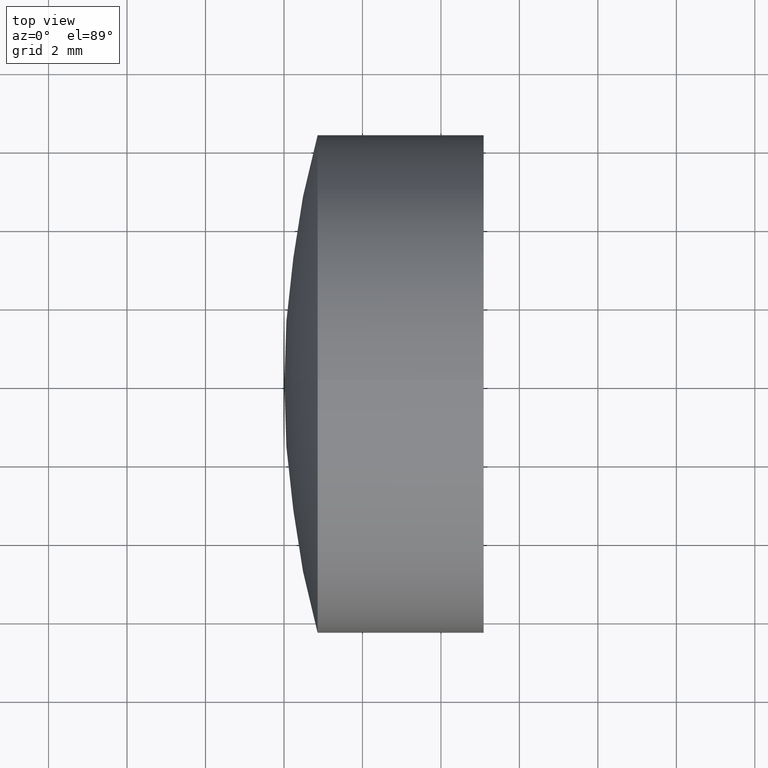
[diagram: clean part render]
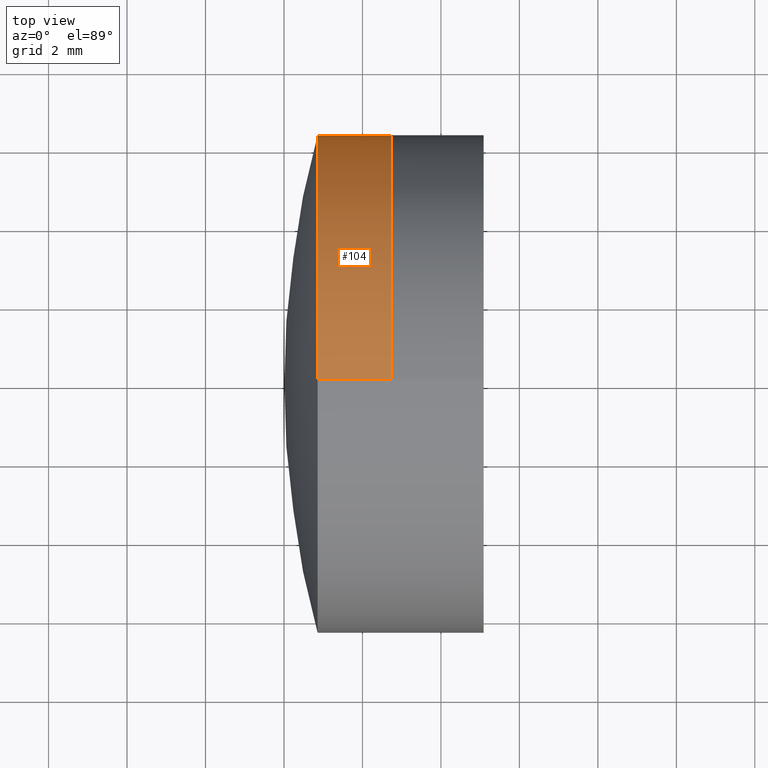
[diagram: same view with one face highlighted and labeled with its STEP entity id]
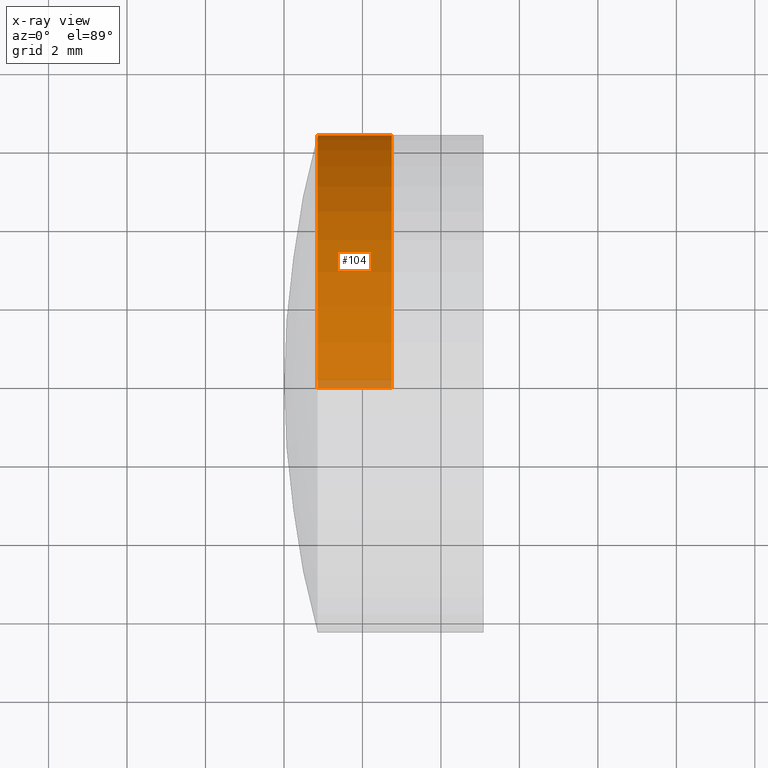
[diagram: x-ray of the same camera — body ghosted, the highlighted face saturated]
A machine part, top view. The second image highlights one B-rep face of the part: STEP entity #104.
The next image is the same camera in x-ray: the body ghosted, the highlighted face saturated — about 3% of this face is hidden behind the body in this view.
In plain terms, the highlighted cylindrical surface (partial cylindrical patch) has radius 6.35 mm, axis along (-1, -0, -0).
Its self-contained STEP definition (entity closure, byte-faithful):
#21 = ORIENTED_EDGE ( 'NONE', *, *, #332, .T. ) ;
#30 = LINE ( 'NONE', #167, #227 ) ;
#42 = DIRECTION ( 'NONE',  ( -1.000000000000000000, -0.0000000000000000000, -0.0000000000000000000 ) ) ;
#85 = DIRECTION ( 'NONE',  ( -1.000000000000000000, -0.0000000000000000000, -0.0000000000000000000 ) ) ;
#98 = EDGE_CURVE ( 'NONE', #213, #303, #251, .T. ) ;
#99 = VERTEX_POINT ( 'NONE', #105 ) ;
#104 = ADVANCED_FACE ( 'NONE', ( #318 ), #117, .T. ) ;
#105 = CARTESIAN_POINT ( 'NONE',  ( 284.8569224778333400, 0.0000000000000000000, 6.350000000000001400 ) ) ;
#108 = CIRCLE ( 'NONE', #145, 6.349999999999996100 ) ;
#115 = CARTESIAN_POINT ( 'NONE',  ( 124.5233095260452400, 0.0000000000000000000, 0.0000000000000000000 ) ) ;
#117 = CYLINDRICAL_SURFACE ( 'NONE', #160, 6.349999999999996100 ) ;
#122 = VERTEX_POINT ( 'NONE', #271 ) ;
#140 = CARTESIAN_POINT ( 'NONE',  ( 286.7458055381524700, 7.776507174585689200E-016, -6.349999999999996100 ) ) ;
#142 = DIRECTION ( 'NONE',  ( 0.0000000000000000000, 0.0000000000000000000, 1.000000000000000000 ) ) ;
#145 = AXIS2_PLACEMENT_3D ( 'NONE', #244, #42, #220 ) ;
#146 = CARTESIAN_POINT ( 'NONE',  ( 286.7458055381524700, 0.0000000000000000000, 6.349999999999996100 ) ) ;
#160 = AXIS2_PLACEMENT_3D ( 'NONE', #115, #344, #142 ) ;
#162 = EDGE_LOOP ( 'NONE', ( #225, #21, #196, #337 ) ) ;
#164 = EDGE_CURVE ( 'NONE', #99, #122, #108, .T. ) ;
#167 = CARTESIAN_POINT ( 'NONE',  ( 124.5233095260452400, 0.0000000000000000000, 6.349999999999996100 ) ) ;
#169 = CARTESIAN_POINT ( 'NONE',  ( 286.7458055381524700, 0.0000000000000000000, 0.0000000000000000000 ) ) ;
#196 = ORIENTED_EDGE ( 'NONE', *, *, #164, .F. ) ;
#213 = VERTEX_POINT ( 'NONE', #146 ) ;
#215 = VECTOR ( 'NONE', #85, 1000.000000000000000 ) ;
#216 = DIRECTION ( 'NONE',  ( 0.0000000000000000000, 0.0000000000000000000, 1.000000000000000000 ) ) ;
#220 = DIRECTION ( 'NONE',  ( 0.0000000000000000000, 0.0000000000000000000, 1.000000000000000000 ) ) ;
#225 = ORIENTED_EDGE ( 'NONE', *, *, #98, .T. ) ;
#227 = VECTOR ( 'NONE', #311, 1000.000000000000000 ) ;
#244 = CARTESIAN_POINT ( 'NONE',  ( 284.8569224778333400, 0.0000000000000000000, 0.0000000000000000000 ) ) ;
#251 = CIRCLE ( 'NONE', #255, 6.349999999999996100 ) ;
#255 = AXIS2_PLACEMENT_3D ( 'NONE', #169, #317, #216 ) ;
#259 = CARTESIAN_POINT ( 'NONE',  ( 124.5233095260452400, 7.776507174585689200E-016, -6.349999999999996100 ) ) ;
#271 = CARTESIAN_POINT ( 'NONE',  ( 284.8569224778333400, 7.776507174585695100E-016, -6.350000000000005000 ) ) ;
#288 = LINE ( 'NONE', #259, #215 ) ;
#292 = EDGE_CURVE ( 'NONE', #213, #99, #30, .T. ) ;
#303 = VERTEX_POINT ( 'NONE', #140 ) ;
#311 = DIRECTION ( 'NONE',  ( -1.000000000000000000, -0.0000000000000000000, -0.0000000000000000000 ) ) ;
#317 = DIRECTION ( 'NONE',  ( -1.000000000000000000, -0.0000000000000000000, -0.0000000000000000000 ) ) ;
#318 = FACE_OUTER_BOUND ( 'NONE', #162, .T. ) ;
#332 = EDGE_CURVE ( 'NONE', #303, #122, #288, .T. ) ;
#337 = ORIENTED_EDGE ( 'NONE', *, *, #292, .F. ) ;
#344 = DIRECTION ( 'NONE',  ( -1.000000000000000000, -0.0000000000000000000, -0.0000000000000000000 ) ) ;